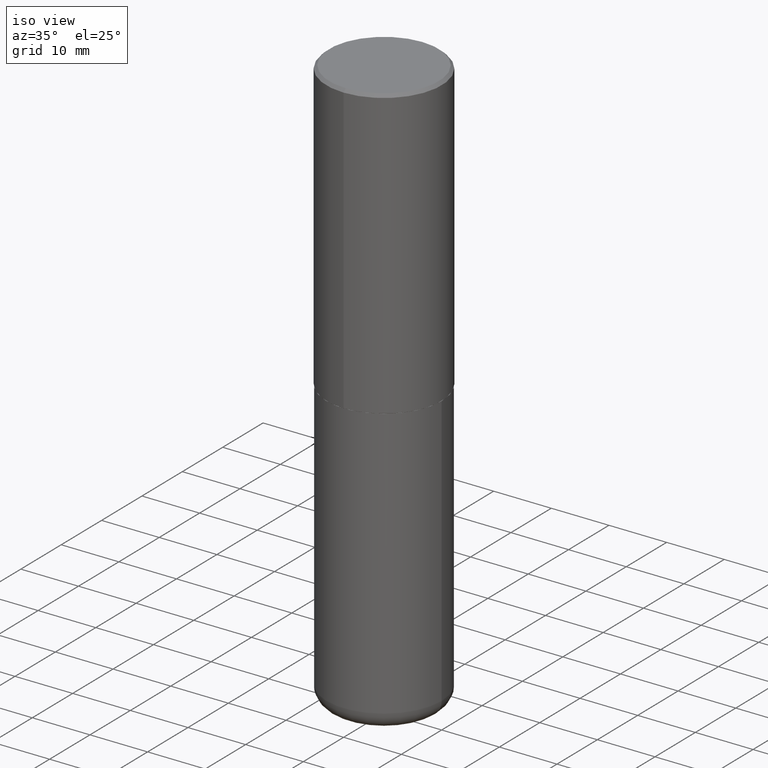
[diagram: clean part render]
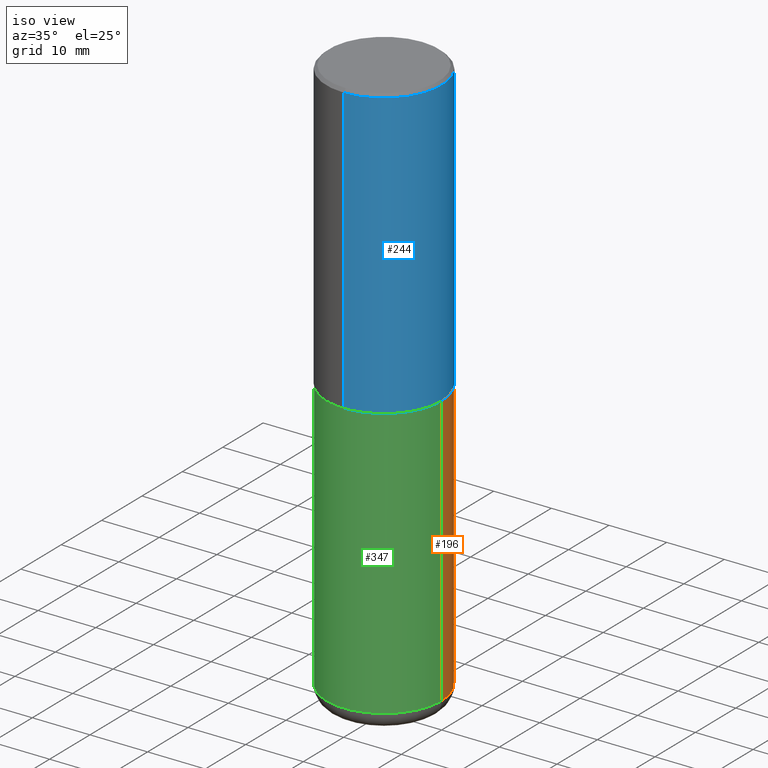
[diagram: same view with three faces highlighted in distinct colors, each labeled with its STEP entity id]
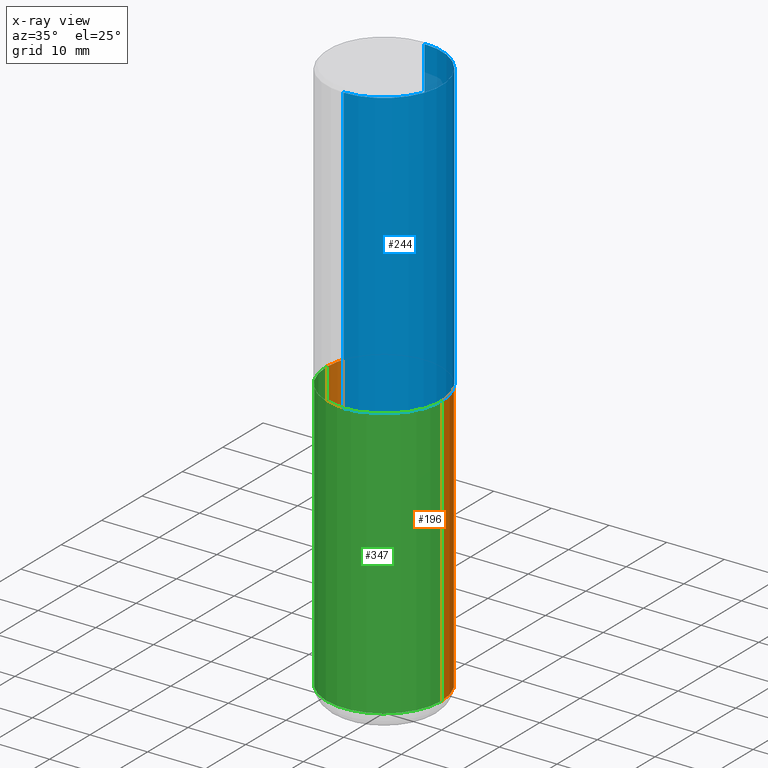
[diagram: x-ray of the same camera — body ghosted, the three highlighted faces saturated]
A machine part, iso view with three faces highlighted in distinct colors.
The next image is the same camera in x-ray (body ghosted, the three faces saturated) — at least one of them is partly hidden behind the body in this view.
Their STEP definitions:

[orange] entity #196 — the highlighted cylindrical surface (partial cylindrical patch) has radius 10 mm, axis along (-0, 0, 1).
#8 = DIRECTION ( 'NONE',  ( -2.445468806185136877E-29, 3.491481338843145188E-15, 1.000000000000000000 ) ) ;
#35 = VERTEX_POINT ( 'NONE', #370 ) ;
#47 = EDGE_LOOP ( 'NONE', ( #105, #334, #206, #125 ) ) ;
#50 = AXIS2_PLACEMENT_3D ( 'NONE', #114, #80, #87 ) ;
#67 = EDGE_CURVE ( 'NONE', #35, #256, #202, .T. ) ;
#80 = DIRECTION ( 'NONE',  ( -2.445468806185136597E-29, 3.491481338843145583E-15, 1.000000000000000000 ) ) ;
#87 = DIRECTION ( 'NONE',  ( 1.000000000000000000, -6.982962677686266711E-15, 4.876176775795935793E-29 ) ) ;
#91 = CARTESIAN_POINT ( 'NONE',  ( -0.3937000000000001054, -1.053621133422057529E-14, -3.818900000000000183 ) ) ;
#99 = DIRECTION ( 'NONE',  ( 1.000000000000000000, -6.982962677686266711E-15, 0.000000000000000000 ) ) ;
#105 = ORIENTED_EDGE ( 'NONE', *, *, #107, .T. ) ;
#107 = EDGE_CURVE ( 'NONE', #35, #240, #394, .T. ) ;
#113 = AXIS2_PLACEMENT_3D ( 'NONE', #137, #210, #99 ) ;
#114 = CARTESIAN_POINT ( 'NONE',  ( 0.000000000000000000, 0.000000000000000000, 0.000000000000000000 ) ) ;
#125 = ORIENTED_EDGE ( 'NONE', *, *, #67, .F. ) ;
#136 = CARTESIAN_POINT ( 'NONE',  ( 4.813905344975441835E-29, -6.872981015512731707E-15, -1.968500000000000139 ) ) ;
#137 = CARTESIAN_POINT ( 'NONE',  ( 9.339000823940418668E-29, -1.333361808490808928E-14, -3.818900000000000183 ) ) ;
#156 = VECTOR ( 'NONE', #378, 39.37007874015748143 ) ;
#164 = DIRECTION ( 'NONE',  ( -2.445468806185136597E-29, 3.491481338843145583E-15, 1.000000000000000000 ) ) ;
#180 = CYLINDRICAL_SURFACE ( 'NONE', #50, 0.3937000000000001054 ) ;
#187 = VECTOR ( 'NONE', #8, 39.37007874015748143 ) ;
#196 = ADVANCED_FACE ( 'NONE', ( #404 ), #180, .T. ) ;
#202 = LINE ( 'NONE', #329, #187 ) ;
#203 = VERTEX_POINT ( 'NONE', #225 ) ;
#205 = DIRECTION ( 'NONE',  ( 1.000000000000000000, -6.982962677686265133E-15, 0.000000000000000000 ) ) ;
#206 = ORIENTED_EDGE ( 'NONE', *, *, #325, .F. ) ;
#210 = DIRECTION ( 'NONE',  ( -2.445468806185136597E-29, 3.491481338843145583E-15, 1.000000000000000000 ) ) ;
#225 = CARTESIAN_POINT ( 'NONE',  ( -0.3937000000000000499, -7.305892799522895709E-15, -1.968500000000000139 ) ) ;
#240 = VERTEX_POINT ( 'NONE', #91 ) ;
#249 = EDGE_CURVE ( 'NONE', #240, #203, #411, .T. ) ;
#256 = VERTEX_POINT ( 'NONE', #289 ) ;
#270 = CIRCLE ( 'NONE', #277, 0.3937000000000000499 ) ;
#277 = AXIS2_PLACEMENT_3D ( 'NONE', #136, #164, #205 ) ;
#289 = CARTESIAN_POINT ( 'NONE',  ( 0.3937000000000000499, -9.622173421717814924E-15, -1.968500000000000139 ) ) ;
#325 = EDGE_CURVE ( 'NONE', #256, #203, #270, .T. ) ;
#329 = CARTESIAN_POINT ( 'NONE',  ( 0.3937000000000001054, -2.749192406205084005E-15, 1.919750796630860452E-29 ) ) ;
#334 = ORIENTED_EDGE ( 'NONE', *, *, #249, .T. ) ;
#370 = CARTESIAN_POINT ( 'NONE',  ( 0.3937000000000001054, -1.608281049111317408E-14, -3.818900000000000183 ) ) ;
#378 = DIRECTION ( 'NONE',  ( -2.445468806185136877E-29, 3.491481338843145188E-15, 1.000000000000000000 ) ) ;
#394 = CIRCLE ( 'NONE', #113, 0.3937000000000001054 ) ;
#404 = FACE_OUTER_BOUND ( 'NONE', #47, .T. ) ;
#411 = LINE ( 'NONE', #418, #156 ) ;
#418 = CARTESIAN_POINT ( 'NONE',  ( -0.3937000000000001054, 2.797406750687515181E-15, -1.936584745033357016E-29 ) ) ;

[blue] entity #244 — the highlighted cylindrical surface (partial cylindrical patch) has radius 10 mm, axis along (-0, 0, 1).
#6 = ORIENTED_EDGE ( 'NONE', *, *, #63, .T. ) ;
#7 = EDGE_CURVE ( 'NONE', #77, #97, #199, .T. ) ;
#15 = CARTESIAN_POINT ( 'NONE',  ( -2.700978061722651647E-15, -0.3937000000000001609, -0.01999999999999870978 ) ) ;
#34 = DIRECTION ( 'NONE',  ( -2.447902336346030930E-29, 3.487996385144809755E-15, 1.000000000000000000 ) ) ;
#40 = ORIENTED_EDGE ( 'NONE', *, *, #7, .F. ) ;
#45 = DIRECTION ( 'NONE',  ( -2.447902336346030930E-29, 3.487996385144809360E-15, 1.000000000000000000 ) ) ;
#54 = VECTOR ( 'NONE', #45, 39.37007874015748143 ) ;
#61 = CYLINDRICAL_SURFACE ( 'NONE', #115, 0.3937000000000002164 ) ;
#63 = EDGE_CURVE ( 'NONE', #103, #388, #198, .T. ) ;
#70 = CARTESIAN_POINT ( 'NONE',  ( 2.797406750687540424E-15, 0.3936999999999934441, -1.967500000000001359 ) ) ;
#77 = VERTEX_POINT ( 'NONE', #176 ) ;
#85 = CIRCLE ( 'NONE', #224, 0.3937000000000001054 ) ;
#95 = VECTOR ( 'NONE', #98, 39.37007874015748143 ) ;
#97 = VERTEX_POINT ( 'NONE', #15 ) ;
#98 = DIRECTION ( 'NONE',  ( -2.447902336346030930E-29, 3.487996385144809360E-15, 1.000000000000000000 ) ) ;
#103 = VERTEX_POINT ( 'NONE', #70 ) ;
#106 = DIRECTION ( 'NONE',  ( -2.447902336346030930E-29, 3.487996385144809755E-15, 1.000000000000000000 ) ) ;
#115 = AXIS2_PLACEMENT_3D ( 'NONE', #314, #34, #148 ) ;
#128 = EDGE_CURVE ( 'NONE', #97, #388, #85, .T. ) ;
#129 = EDGE_LOOP ( 'NONE', ( #320, #6, #194, #40 ) ) ;
#148 = DIRECTION ( 'NONE',  ( -6.982962677686265922E-15, -1.000000000000000000, 3.487996385144809360E-15 ) ) ;
#173 = CARTESIAN_POINT ( 'NONE',  ( 2.749192406205084005E-15, 0.3937000000000000499, -0.02000000000000146105 ) ) ;
#176 = CARTESIAN_POINT ( 'NONE',  ( -2.749192406205036674E-15, -0.3937000000000070998, -1.967499999999998694 ) ) ;
#194 = ORIENTED_EDGE ( 'NONE', *, *, #128, .F. ) ;
#198 = LINE ( 'NONE', #258, #95 ) ;
#199 = LINE ( 'NONE', #332, #54 ) ;
#224 = AXIS2_PLACEMENT_3D ( 'NONE', #343, #371, #264 ) ;
#244 = ADVANCED_FACE ( 'NONE', ( #382 ), #61, .T. ) ;
#248 = AXIS2_PLACEMENT_3D ( 'NONE', #260, #106, #402 ) ;
#258 = CARTESIAN_POINT ( 'NONE',  ( 2.797406750687515575E-15, 0.3937000000000002164, -1.373224176831512262E-15 ) ) ;
#260 = CARTESIAN_POINT ( 'NONE',  ( 4.816247846760815671E-29, -6.862632887772413316E-15, -1.967500000000000027 ) ) ;
#264 = DIRECTION ( 'NONE',  ( -6.982962677686265133E-15, -1.000000000000000000, 3.491137977679279029E-15 ) ) ;
#314 = CARTESIAN_POINT ( 'NONE',  ( 0.000000000000000000, 0.000000000000000000, 0.000000000000000000 ) ) ;
#320 = ORIENTED_EDGE ( 'NONE', *, *, #380, .T. ) ;
#332 = CARTESIAN_POINT ( 'NONE',  ( -2.749192406205084400E-15, -0.3937000000000002164, 1.373224176831512262E-15 ) ) ;
#343 = CARTESIAN_POINT ( 'NONE',  ( 4.895804672692082949E-31, -6.975992770289649092E-17, -0.02000000000000008715 ) ) ;
#371 = DIRECTION ( 'NONE',  ( -2.447902336346030930E-29, 3.487996385144809755E-15, 1.000000000000000000 ) ) ;
#380 = EDGE_CURVE ( 'NONE', #77, #103, #385, .T. ) ;
#382 = FACE_OUTER_BOUND ( 'NONE', #129, .T. ) ;
#385 = CIRCLE ( 'NONE', #248, 0.3937000000000002720 ) ;
#388 = VERTEX_POINT ( 'NONE', #173 ) ;
#402 = DIRECTION ( 'NONE',  ( -6.982962677686265922E-15, -1.000000000000000000, 3.469453890861393601E-15 ) ) ;

[green] entity #347 — the highlighted cylindrical surface (partial cylindrical patch) has radius 10 mm, axis along (-0, 0, 1).
#4 = AXIS2_PLACEMENT_3D ( 'NONE', #27, #19, #185 ) ;
#8 = DIRECTION ( 'NONE',  ( -2.445468806185136877E-29, 3.491481338843145188E-15, 1.000000000000000000 ) ) ;
#19 = DIRECTION ( 'NONE',  ( -2.445468806185136597E-29, 3.491481338843145583E-15, 1.000000000000000000 ) ) ;
#27 = CARTESIAN_POINT ( 'NONE',  ( 4.813905344975441835E-29, -6.872981015512731707E-15, -1.968500000000000139 ) ) ;
#35 = VERTEX_POINT ( 'NONE', #370 ) ;
#48 = DIRECTION ( 'NONE',  ( 1.000000000000000000, -6.982962677686266711E-15, 4.876176775795935793E-29 ) ) ;
#62 = EDGE_LOOP ( 'NONE', ( #226, #172, #303, #109 ) ) ;
#66 = AXIS2_PLACEMENT_3D ( 'NONE', #391, #239, #112 ) ;
#67 = EDGE_CURVE ( 'NONE', #35, #256, #202, .T. ) ;
#91 = CARTESIAN_POINT ( 'NONE',  ( -0.3937000000000001054, -1.053621133422057529E-14, -3.818900000000000183 ) ) ;
#109 = ORIENTED_EDGE ( 'NONE', *, *, #174, .F. ) ;
#112 = DIRECTION ( 'NONE',  ( 1.000000000000000000, -6.982962677686266711E-15, 0.000000000000000000 ) ) ;
#130 = DIRECTION ( 'NONE',  ( -2.445468806185136597E-29, 3.491481338843145583E-15, 1.000000000000000000 ) ) ;
#131 = CIRCLE ( 'NONE', #4, 0.3937000000000000499 ) ;
#156 = VECTOR ( 'NONE', #378, 39.37007874015748143 ) ;
#172 = ORIENTED_EDGE ( 'NONE', *, *, #384, .T. ) ;
#174 = EDGE_CURVE ( 'NONE', #203, #256, #131, .T. ) ;
#185 = DIRECTION ( 'NONE',  ( 1.000000000000000000, -6.982962677686265133E-15, 0.000000000000000000 ) ) ;
#187 = VECTOR ( 'NONE', #8, 39.37007874015748143 ) ;
#201 = CIRCLE ( 'NONE', #66, 0.3937000000000001054 ) ;
#202 = LINE ( 'NONE', #329, #187 ) ;
#203 = VERTEX_POINT ( 'NONE', #225 ) ;
#225 = CARTESIAN_POINT ( 'NONE',  ( -0.3937000000000000499, -7.305892799522895709E-15, -1.968500000000000139 ) ) ;
#226 = ORIENTED_EDGE ( 'NONE', *, *, #249, .F. ) ;
#239 = DIRECTION ( 'NONE',  ( -2.445468806185136597E-29, 3.491481338843145583E-15, 1.000000000000000000 ) ) ;
#240 = VERTEX_POINT ( 'NONE', #91 ) ;
#249 = EDGE_CURVE ( 'NONE', #240, #203, #411, .T. ) ;
#256 = VERTEX_POINT ( 'NONE', #289 ) ;
#289 = CARTESIAN_POINT ( 'NONE',  ( 0.3937000000000000499, -9.622173421717814924E-15, -1.968500000000000139 ) ) ;
#295 = CARTESIAN_POINT ( 'NONE',  ( 0.000000000000000000, 0.000000000000000000, 0.000000000000000000 ) ) ;
#303 = ORIENTED_EDGE ( 'NONE', *, *, #67, .T. ) ;
#329 = CARTESIAN_POINT ( 'NONE',  ( 0.3937000000000001054, -2.749192406205084005E-15, 1.919750796630860452E-29 ) ) ;
#342 = AXIS2_PLACEMENT_3D ( 'NONE', #295, #130, #48 ) ;
#347 = ADVANCED_FACE ( 'NONE', ( #403 ), #407, .T. ) ;
#370 = CARTESIAN_POINT ( 'NONE',  ( 0.3937000000000001054, -1.608281049111317408E-14, -3.818900000000000183 ) ) ;
#378 = DIRECTION ( 'NONE',  ( -2.445468806185136877E-29, 3.491481338843145188E-15, 1.000000000000000000 ) ) ;
#384 = EDGE_CURVE ( 'NONE', #240, #35, #201, .T. ) ;
#391 = CARTESIAN_POINT ( 'NONE',  ( 9.339000823940418668E-29, -1.333361808490808928E-14, -3.818900000000000183 ) ) ;
#403 = FACE_OUTER_BOUND ( 'NONE', #62, .T. ) ;
#407 = CYLINDRICAL_SURFACE ( 'NONE', #342, 0.3937000000000001054 ) ;
#411 = LINE ( 'NONE', #418, #156 ) ;
#418 = CARTESIAN_POINT ( 'NONE',  ( -0.3937000000000001054, 2.797406750687515181E-15, -1.936584745033357016E-29 ) ) ;